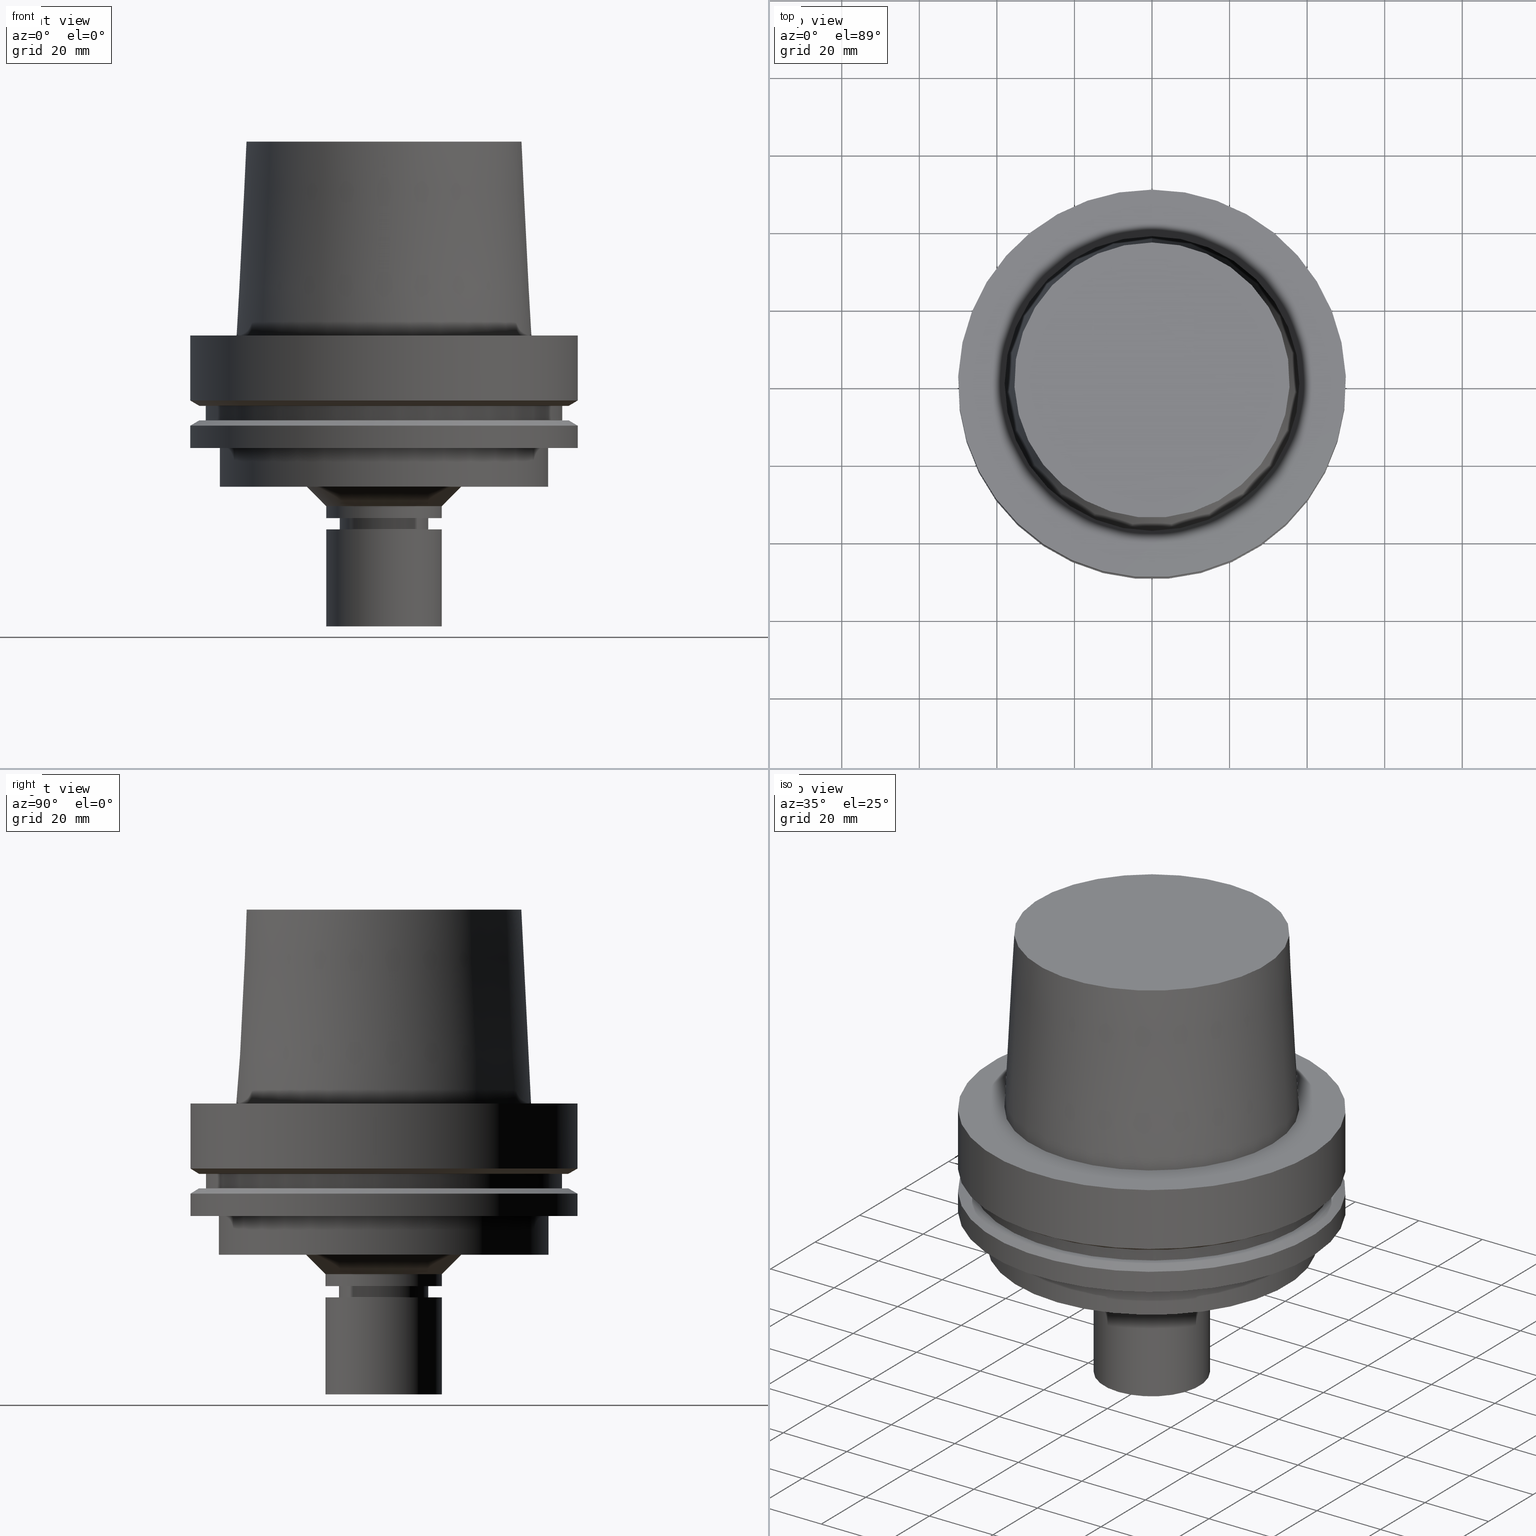
[diagram: canonical four-view strip — front | top / right | iso, engineering-drawing reading convention]
A machine part, canonical four-view strip (front | top / right | iso — engineering-drawing reading convention). The complete STEP part file that produces these views, byte-faithful:
ISO-10303-21;
HEADER;
FILE_DESCRIPTION((''),'1');
FILE_NAME('U:/Translate/02_3D_Field-HP\X2\FF71FF6FFF8CFF9F5916\X0\2013/02_Step_Field-HP\X2\FF71FF6FFF8CFF9F5916\X0\2013/HSK-A100-MEGAER16-75NL.stp','2016-06-22T01:01:26',(''),(''),'Spatial Interop R21 SP3','Kubotek KeyCreator 2011 V10.0.2 (22737)',' ');
FILE_SCHEMA(('automotive_design'));
ENDSEC;
DATA;
#1=MECHANICAL_DESIGN_GEOMETRIC_PRESENTATION_REPRESENTATION(' ',(#14,#15,#16,#17,#18,#19,#20,#21,#22,#23,#24,#25,#26,#27,#28,#29,#30,#31,#32,#33,#34,#35,#36,#37,#38,#39,#40,#41,#42,#43,#44,#45,#46,#47,#48,#49,#50,#51,#52,#53,#54,#55,#56,#57,#58,#59,#60,#61),#10);
#2=PRODUCT_DEFINITION_CONTEXT('',#62,'design');
#3=APPLICATION_PROTOCOL_DEFINITION('INTERNATIONAL STANDARD','automotive_design',1994,#62);
#4=PRODUCT_CATEGORY_RELATIONSHIP('NONE','NONE',#63,#64);
#5=SHAPE_DEFINITION_REPRESENTATION(#65,#66);
#6=PRODUCT_DEFINITION_CONTEXT('',#67,'design');
#7=APPLICATION_PROTOCOL_DEFINITION('INTERNATIONAL STANDARD','automotive_design',1994,#67);
#8=PRODUCT_CATEGORY_RELATIONSHIP('NONE','NONE',#68,#69);
#9=SHAPE_DEFINITION_REPRESENTATION(#70,#71);
#10= (GEOMETRIC_REPRESENTATION_CONTEXT(3)GLOBAL_UNCERTAINTY_ASSIGNED_CONTEXT((#74))GLOBAL_UNIT_ASSIGNED_CONTEXT((#76,#77,#78))REPRESENTATION_CONTEXT('NONE','WORKSPACE'));
#14=STYLED_ITEM('',(#80,#81),#82);
#15=STYLED_ITEM('',(#83,#84),#85);
#16=STYLED_ITEM('',(#86,#87),#88);
#17=STYLED_ITEM('',(#89,#90),#91);
#18=STYLED_ITEM('',(#92),#93);
#19=STYLED_ITEM('',(#94),#95);
#20=STYLED_ITEM('',(#96,#97),#98);
#21=STYLED_ITEM('',(#99,#100),#101);
#22=STYLED_ITEM('',(#102,#103),#104);
#23=STYLED_ITEM('',(#105),#106);
#24=STYLED_ITEM('',(#107),#108);
#25=STYLED_ITEM('',(#109,#110),#111);
#26=STYLED_ITEM('',(#112),#113);
#27=STYLED_ITEM('',(#114),#115);
#28=STYLED_ITEM('',(#116),#117);
#29=STYLED_ITEM('',(#118),#119);
#30=STYLED_ITEM('',(#120),#121);
#31=STYLED_ITEM('',(#122,#123),#124);
#32=STYLED_ITEM('',(#125,#126),#127);
#33=STYLED_ITEM('',(#128,#129),#130);
#34=STYLED_ITEM('',(#131,#132),#133);
#35=STYLED_ITEM('',(#134,#135),#136);
#36=STYLED_ITEM('',(#137,#138),#139);
#37=STYLED_ITEM('',(#140,#141),#142);
#38=STYLED_ITEM('',(#143),#144);
#39=STYLED_ITEM('',(#145,#146),#147);
#40=STYLED_ITEM('',(#148),#149);
#41=STYLED_ITEM('',(#150),#151);
#42=STYLED_ITEM('',(#152,#153),#154);
#43=STYLED_ITEM('',(#155),#156);
#44=STYLED_ITEM('',(#157),#158);
#45=STYLED_ITEM('',(#159),#160);
#46=STYLED_ITEM('',(#161,#162),#163);
#47=STYLED_ITEM('',(#164),#165);
#48=STYLED_ITEM('',(#166),#167);
#49=STYLED_ITEM('',(#168),#169);
#50=STYLED_ITEM('',(#170),#171);
#51=STYLED_ITEM('',(#172,#173),#174);
#52=STYLED_ITEM('',(#175,#176),#177);
#53=STYLED_ITEM('',(#178,#179),#180);
#54=STYLED_ITEM('',(#181,#182),#183);
#55=STYLED_ITEM('',(#184,#185),#186);
#56=STYLED_ITEM('',(#187,#188),#189);
#57=STYLED_ITEM('',(#190,#191),#192);
#58=STYLED_ITEM('',(#193),#194);
#59=STYLED_ITEM('',(#195,#196),#197);
#60=STYLED_ITEM('',(#198),#199);
#61=STYLED_ITEM('',(#200),#201);
#62=APPLICATION_CONTEXT(' ');
#63=PRODUCT_CATEGORY('part','NONE');
#64=PRODUCT_RELATED_PRODUCT_CATEGORY('detail',' ',(#202));
#65=PRODUCT_DEFINITION_SHAPE('NONE','NONE',#203);
#66=ADVANCED_BREP_SHAPE_REPRESENTATION('Unnamed[1]',(#130,#204),#10);
#67=APPLICATION_CONTEXT(' ');
#68=PRODUCT_CATEGORY('part','NONE');
#69=PRODUCT_RELATED_PRODUCT_CATEGORY('detail',' ',(#205));
#70=PRODUCT_DEFINITION_SHAPE('NONE','NONE',#206);
#71=ADVANCED_BREP_SHAPE_REPRESENTATION('Unnamed[1]',(#98,#207),#10);
#74=UNCERTAINTY_MEASURE_WITH_UNIT(LENGTH_MEASURE(1.0E-006),#76,'','');
#76= (CONVERSION_BASED_UNIT('MILLIMETRE',#210)LENGTH_UNIT()NAMED_UNIT(#213));
#77= (NAMED_UNIT(#215)PLANE_ANGLE_UNIT()SI_UNIT($,.RADIAN.));
#78= (NAMED_UNIT(#215)SOLID_ANGLE_UNIT()SI_UNIT($,.STERADIAN.));
#80=PRESENTATION_STYLE_ASSIGNMENT((#221));
#81=PRESENTATION_STYLE_ASSIGNMENT((#222));
#82=ADVANCED_FACE('Unnamed[1]',(#223,#224),#225,.T.);
#83=PRESENTATION_STYLE_ASSIGNMENT((#226));
#84=PRESENTATION_STYLE_ASSIGNMENT((#227));
#85=ADVANCED_FACE('Unnamed[1]',(#228,#229),#230,.T.);
#86=PRESENTATION_STYLE_ASSIGNMENT((#231));
#87=PRESENTATION_STYLE_ASSIGNMENT((#232));
#88=ADVANCED_FACE('Unnamed[1]',(#233,#234),#235,.T.);
#89=PRESENTATION_STYLE_ASSIGNMENT((#236));
#90=PRESENTATION_STYLE_ASSIGNMENT((#237));
#91=ADVANCED_FACE('Unnamed[1]',(#238,#239),#240,.T.);
#92=PRESENTATION_STYLE_ASSIGNMENT((#241));
#93=EDGE_CURVE('Unnamed[1]',#242,#242,#243,.T.);
#94=PRESENTATION_STYLE_ASSIGNMENT((#244));
#95=EDGE_CURVE('Unnamed[1]',#245,#245,#246,.T.);
#96=PRESENTATION_STYLE_ASSIGNMENT((#247));
#97=PRESENTATION_STYLE_ASSIGNMENT((#248));
#98=MANIFOLD_SOLID_BREP('Unnamed[1]',#249);
#99=PRESENTATION_STYLE_ASSIGNMENT((#250));
#100=PRESENTATION_STYLE_ASSIGNMENT((#251));
#101=ADVANCED_FACE('Unnamed[1]',(#252,#253),#254,.T.);
#102=PRESENTATION_STYLE_ASSIGNMENT((#255));
#103=PRESENTATION_STYLE_ASSIGNMENT((#256));
#104=ADVANCED_FACE('Unnamed[1]',(#257,#258),#259,.T.);
#105=PRESENTATION_STYLE_ASSIGNMENT((#260));
#106=EDGE_CURVE('Unnamed[1]',#261,#261,#262,.T.);
#107=PRESENTATION_STYLE_ASSIGNMENT((#263));
#108=EDGE_CURVE('Unnamed[1]',#264,#264,#265,.T.);
#109=PRESENTATION_STYLE_ASSIGNMENT((#266));
#110=PRESENTATION_STYLE_ASSIGNMENT((#267));
#111=ADVANCED_FACE('Unnamed[1]',(#268,#269),#270,.T.);
#112=PRESENTATION_STYLE_ASSIGNMENT((#271));
#113=EDGE_CURVE('Unnamed[1]',#272,#272,#273,.T.);
#114=PRESENTATION_STYLE_ASSIGNMENT((#274));
#115=EDGE_CURVE('Unnamed[1]',#275,#275,#276,.T.);
#116=PRESENTATION_STYLE_ASSIGNMENT((#277));
#117=EDGE_CURVE('Unnamed[1]',#278,#278,#279,.T.);
#118=PRESENTATION_STYLE_ASSIGNMENT((#280));
#119=EDGE_CURVE('Unnamed[1]',#281,#281,#282,.T.);
#120=PRESENTATION_STYLE_ASSIGNMENT((#283));
#121=EDGE_CURVE('Unnamed[1]',#284,#284,#285,.T.);
#122=PRESENTATION_STYLE_ASSIGNMENT((#286));
#123=PRESENTATION_STYLE_ASSIGNMENT((#287));
#124=ADVANCED_FACE('Unnamed[1]',(#288,#289),#290,.T.);
#125=PRESENTATION_STYLE_ASSIGNMENT((#291));
#126=PRESENTATION_STYLE_ASSIGNMENT((#292));
#127=ADVANCED_FACE('Unnamed[1]',(#293,#294),#295,.T.);
#128=PRESENTATION_STYLE_ASSIGNMENT((#296));
#129=PRESENTATION_STYLE_ASSIGNMENT((#297));
#130=MANIFOLD_SOLID_BREP('Unnamed[1]',#298);
#131=PRESENTATION_STYLE_ASSIGNMENT((#299));
#132=PRESENTATION_STYLE_ASSIGNMENT((#300));
#133=ADVANCED_FACE('Unnamed[1]',(#301,#302),#303,.T.);
#134=PRESENTATION_STYLE_ASSIGNMENT((#304));
#135=PRESENTATION_STYLE_ASSIGNMENT((#305));
#136=ADVANCED_FACE('Unnamed[1]',(#306,#307),#308,.T.);
#137=PRESENTATION_STYLE_ASSIGNMENT((#309));
#138=PRESENTATION_STYLE_ASSIGNMENT((#310));
#139=ADVANCED_FACE('Unnamed[1]',(#311,#312),#313,.T.);
#140=PRESENTATION_STYLE_ASSIGNMENT((#314));
#141=PRESENTATION_STYLE_ASSIGNMENT((#315));
#142=ADVANCED_FACE('Unnamed[1]',(#316,#317),#318,.T.);
#143=PRESENTATION_STYLE_ASSIGNMENT((#319));
#144=EDGE_CURVE('Unnamed[1]',#320,#320,#321,.T.);
#145=PRESENTATION_STYLE_ASSIGNMENT((#322));
#146=PRESENTATION_STYLE_ASSIGNMENT((#323));
#147=ADVANCED_FACE('Unnamed[1]',(#324),#325,.T.);
#148=PRESENTATION_STYLE_ASSIGNMENT((#326));
#149=EDGE_CURVE('Unnamed[1]',#327,#327,#328,.T.);
#150=PRESENTATION_STYLE_ASSIGNMENT((#329));
#151=EDGE_CURVE('Unnamed[1]',#330,#330,#331,.T.);
#152=PRESENTATION_STYLE_ASSIGNMENT((#332));
#153=PRESENTATION_STYLE_ASSIGNMENT((#333));
#154=ADVANCED_FACE('Unnamed[1]',(#334),#335,.T.);
#155=PRESENTATION_STYLE_ASSIGNMENT((#336));
#156=EDGE_CURVE('Unnamed[1]',#337,#337,#338,.T.);
#157=PRESENTATION_STYLE_ASSIGNMENT((#339));
#158=EDGE_CURVE('Unnamed[1]',#340,#340,#341,.T.);
#159=PRESENTATION_STYLE_ASSIGNMENT((#342));
#160=EDGE_CURVE('Unnamed[1]',#343,#343,#344,.T.);
#161=PRESENTATION_STYLE_ASSIGNMENT((#345));
#162=PRESENTATION_STYLE_ASSIGNMENT((#346));
#163=ADVANCED_FACE('Unnamed[1]',(#347,#348),#349,.T.);
#164=PRESENTATION_STYLE_ASSIGNMENT((#350));
#165=EDGE_CURVE('Unnamed[1]',#351,#351,#352,.T.);
#166=PRESENTATION_STYLE_ASSIGNMENT((#353));
#167=EDGE_CURVE('Unnamed[1]',#354,#354,#355,.T.);
#168=PRESENTATION_STYLE_ASSIGNMENT((#356));
#169=EDGE_CURVE('Unnamed[1]',#357,#357,#358,.T.);
#170=PRESENTATION_STYLE_ASSIGNMENT((#359));
#171=EDGE_CURVE('Unnamed[1]',#360,#360,#361,.T.);
#172=PRESENTATION_STYLE_ASSIGNMENT((#362));
#173=PRESENTATION_STYLE_ASSIGNMENT((#363));
#174=ADVANCED_FACE('Unnamed[1]',(#364),#365,.T.);
#175=PRESENTATION_STYLE_ASSIGNMENT((#366));
#176=PRESENTATION_STYLE_ASSIGNMENT((#367));
#177=ADVANCED_FACE('Unnamed[1]',(#368,#369),#370,.T.);
#178=PRESENTATION_STYLE_ASSIGNMENT((#371));
#179=PRESENTATION_STYLE_ASSIGNMENT((#372));
#180=ADVANCED_FACE('Unnamed[1]',(#373),#374,.T.);
#181=PRESENTATION_STYLE_ASSIGNMENT((#375));
#182=PRESENTATION_STYLE_ASSIGNMENT((#376));
#183=ADVANCED_FACE('Unnamed[1]',(#377,#378),#379,.T.);
#184=PRESENTATION_STYLE_ASSIGNMENT((#380));
#185=PRESENTATION_STYLE_ASSIGNMENT((#381));
#186=ADVANCED_FACE('Unnamed[1]',(#382,#383),#384,.T.);
#187=PRESENTATION_STYLE_ASSIGNMENT((#385));
#188=PRESENTATION_STYLE_ASSIGNMENT((#386));
#189=ADVANCED_FACE('Unnamed[1]',(#387,#388),#389,.T.);
#190=PRESENTATION_STYLE_ASSIGNMENT((#390));
#191=PRESENTATION_STYLE_ASSIGNMENT((#391));
#192=ADVANCED_FACE('Unnamed[1]',(#392,#393),#394,.T.);
#193=PRESENTATION_STYLE_ASSIGNMENT((#395));
#194=EDGE_CURVE('Unnamed[1]',#396,#396,#397,.T.);
#195=PRESENTATION_STYLE_ASSIGNMENT((#398));
#196=PRESENTATION_STYLE_ASSIGNMENT((#399));
#197=ADVANCED_FACE('Unnamed[1]',(#400,#401),#402,.T.);
#198=PRESENTATION_STYLE_ASSIGNMENT((#403));
#199=EDGE_CURVE('Unnamed[1]',#404,#404,#405,.T.);
#200=PRESENTATION_STYLE_ASSIGNMENT((#406));
#201=EDGE_CURVE('Unnamed[1]',#407,#407,#408,.T.);
#202=PRODUCT('Unnamed[1]','Unnamed[1]','PART-Unnamed[1]-DESC',(#409));
#203=PRODUCT_DEFINITION('NONE','NONE',#410,#2);
#204=AXIS2_PLACEMENT_3D('',#411,#412,#413);
#205=PRODUCT('Unnamed[1]','Unnamed[1]','PART-Unnamed[1]-DESC',(#414));
#206=PRODUCT_DEFINITION('NONE','NONE',#415,#6);
#207=AXIS2_PLACEMENT_3D('',#416,#417,#418);
#210=LENGTH_MEASURE_WITH_UNIT(LENGTH_MEASURE(1.0),#419);
#213=DIMENSIONAL_EXPONENTS(1.0,0.0,0.0,0.0,0.0,0.0,0.0);
#215=DIMENSIONAL_EXPONENTS(0.0,0.0,0.0,0.0,0.0,0.0,0.0);
#221=SURFACE_STYLE_USAGE(.BOTH.,#420);
#222=CURVE_STYLE('',#421,POSITIVE_LENGTH_MEASURE(1000.0),#422);
#223=FACE_BOUND('',#423,.T.);
#224=FACE_BOUND('',#424,.T.);
#225=CONICAL_SURFACE('',#425,48.81129763,1.04719755328238);
#226=SURFACE_STYLE_USAGE(.BOTH.,#426);
#227=CURVE_STYLE('',#427,POSITIVE_LENGTH_MEASURE(1000.0),#428);
#228=FACE_BOUND('',#429,.T.);
#229=FACE_BOUND('',#430,.T.);
#230=CONICAL_SURFACE('',#431,17.5,0.785398163397448);
#231=SURFACE_STYLE_USAGE(.BOTH.,#432);
#232=CURVE_STYLE('',#433,POSITIVE_LENGTH_MEASURE(1000.0),#434);
#233=FACE_BOUND('',#435,.T.);
#234=FACE_BOUND('',#436,.T.);
#235=CYLINDRICAL_SURFACE('',#437,15.0);
#236=SURFACE_STYLE_USAGE(.BOTH.,#438);
#237=CURVE_STYLE('',#439,POSITIVE_LENGTH_MEASURE(1000.0),#440);
#238=FACE_BOUND('',#441,.T.);
#239=FACE_OUTER_BOUND('',#442,.T.);
#240=PLANE('',#443);
#241=CURVE_STYLE('',#444,POSITIVE_LENGTH_MEASURE(1000.0),#445);
#242=VERTEX_POINT('',#446);
#243=CIRCLE('',#447,42.5);
#244=CURVE_STYLE('',#448,POSITIVE_LENGTH_MEASURE(1000.0),#449);
#245=VERTEX_POINT('',#450);
#246=CIRCLE('',#451,15.0);
#247=SURFACE_STYLE_USAGE(.BOTH.,#452);
#248=CURVE_STYLE('',#453,POSITIVE_LENGTH_MEASURE(1000.0),#454);
#249=CLOSED_SHELL('',(#174,#180,#88));
#250=SURFACE_STYLE_USAGE(.BOTH.,#455);
#251=CURVE_STYLE('',#456,POSITIVE_LENGTH_MEASURE(1000.0),#457);
#252=FACE_BOUND('',#458,.T.);
#253=FACE_BOUND('',#459,.T.);
#254=CYLINDRICAL_SURFACE('',#460,11.4999999999964);
#255=SURFACE_STYLE_USAGE(.BOTH.,#461);
#256=CURVE_STYLE('',#462,POSITIVE_LENGTH_MEASURE(1000.0),#463);
#257=FACE_BOUND('',#464,.T.);
#258=FACE_BOUND('',#465,.T.);
#259=CYLINDRICAL_SURFACE('',#466,11.0000000000001);
#260=CURVE_STYLE('',#467,POSITIVE_LENGTH_MEASURE(1000.0),#468);
#261=VERTEX_POINT('',#469);
#262=CIRCLE('',#470,37.9999999999349);
#263=CURVE_STYLE('',#471,POSITIVE_LENGTH_MEASURE(1000.0),#472);
#264=VERTEX_POINT('',#473);
#265=CIRCLE('',#474,46.0);
#266=SURFACE_STYLE_USAGE(.BOTH.,#475);
#267=CURVE_STYLE('',#476,POSITIVE_LENGTH_MEASURE(1000.0),#477);
#268=FACE_BOUND('',#478,.T.);
#269=FACE_OUTER_BOUND('',#479,.T.);
#270=PLANE('',#480);
#271=CURVE_STYLE('',#481,POSITIVE_LENGTH_MEASURE(1000.0),#482);
#272=VERTEX_POINT('',#483);
#273=CIRCLE('',#484,35.5000000015618);
#274=CURVE_STYLE('',#485,POSITIVE_LENGTH_MEASURE(1000.0),#486);
#275=VERTEX_POINT('',#487);
#276=CIRCLE('',#488,15.0);
#277=CURVE_STYLE('',#489,POSITIVE_LENGTH_MEASURE(1000.0),#490);
#278=VERTEX_POINT('',#491);
#279=CIRCLE('',#492,47.62259526);
#280=CURVE_STYLE('',#493,POSITIVE_LENGTH_MEASURE(1000.0),#494);
#281=VERTEX_POINT('',#495);
#282=CIRCLE('',#496,50.0);
#283=CURVE_STYLE('',#497,POSITIVE_LENGTH_MEASURE(1000.0),#498);
#284=VERTEX_POINT('',#499);
#285=CIRCLE('',#500,42.5);
#286=SURFACE_STYLE_USAGE(.BOTH.,#501);
#287=CURVE_STYLE('',#502,POSITIVE_LENGTH_MEASURE(1000.0),#503);
#288=FACE_BOUND('',#504,.T.);
#289=FACE_BOUND('',#505,.T.);
#290=CONICAL_SURFACE('',#506,36.7500000007484,0.0499583956894843);
#291=SURFACE_STYLE_USAGE(.BOTH.,#507);
#292=CURVE_STYLE('',#508,POSITIVE_LENGTH_MEASURE(1000.0),#509);
#293=FACE_BOUND('',#510,.T.);
#294=FACE_BOUND('',#511,.T.);
#295=CYLINDRICAL_SURFACE('',#512,15.0);
#296=SURFACE_STYLE_USAGE(.BOTH.,#513);
#297=CURVE_STYLE('',#514,POSITIVE_LENGTH_MEASURE(1000.0),#515);
#298=CLOSED_SHELL('',(#154,#124,#163,#189,#82,#91,#183,#136,#197,#192,#111,#139,#186,#85,#127,#142,#101,#177,#104,#133,#147));
#299=SURFACE_STYLE_USAGE(.BOTH.,#516);
#300=CURVE_STYLE('',#517,POSITIVE_LENGTH_MEASURE(1000.0),#518);
#301=FACE_BOUND('',#519,.T.);
#302=FACE_BOUND('',#520,.T.);
#303=CONICAL_SURFACE('',#521,10.4499999999999,0.523598775598215);
#304=SURFACE_STYLE_USAGE(.BOTH.,#522);
#305=CURVE_STYLE('',#523,POSITIVE_LENGTH_MEASURE(1000.0),#524);
#306=FACE_OUTER_BOUND('',#525,.T.);
#307=FACE_BOUND('',#526,.T.);
#308=PLANE('',#527);
#309=SURFACE_STYLE_USAGE(.BOTH.,#528);
#310=CURVE_STYLE('',#529,POSITIVE_LENGTH_MEASURE(1000.0),#530);
#311=FACE_BOUND('',#531,.T.);
#312=FACE_BOUND('',#532,.T.);
#313=CYLINDRICAL_SURFACE('',#533,42.5);
#314=SURFACE_STYLE_USAGE(.BOTH.,#534);
#315=CURVE_STYLE('',#535,POSITIVE_LENGTH_MEASURE(1000.0),#536);
#316=FACE_BOUND('',#537,.T.);
#317=FACE_OUTER_BOUND('',#538,.T.);
#318=PLANE('',#539);
#319=CURVE_STYLE('',#540,POSITIVE_LENGTH_MEASURE(1000.0),#541);
#320=VERTEX_POINT('',#542);
#321=CIRCLE('',#543,47.62259526);
#322=SURFACE_STYLE_USAGE(.BOTH.,#544);
#323=CURVE_STYLE('',#545,POSITIVE_LENGTH_MEASURE(1000.0),#546);
#324=FACE_OUTER_BOUND('',#547,.T.);
#325=PLANE('',#548);
#326=CURVE_STYLE('',#549,POSITIVE_LENGTH_MEASURE(1000.0),#550);
#327=VERTEX_POINT('',#551);
#328=CIRCLE('',#552,11.0000000000003);
#329=CURVE_STYLE('',#553,POSITIVE_LENGTH_MEASURE(1000.0),#554);
#330=VERTEX_POINT('',#555);
#331=CIRCLE('',#556,50.0);
#332=SURFACE_STYLE_USAGE(.BOTH.,#557);
#333=CURVE_STYLE('',#558,POSITIVE_LENGTH_MEASURE(1000.0),#559);
#334=FACE_OUTER_BOUND('',#560,.T.);
#335=PLANE('',#561);
#336=CURVE_STYLE('',#562,POSITIVE_LENGTH_MEASURE(1000.0),#563);
#337=VERTEX_POINT('',#564);
#338=CIRCLE('',#565,15.0000000000001);
#339=CURVE_STYLE('',#566,POSITIVE_LENGTH_MEASURE(1000.0),#567);
#340=VERTEX_POINT('',#568);
#341=CIRCLE('',#569,11.4999999999907);
#342=CURVE_STYLE('',#570,POSITIVE_LENGTH_MEASURE(1000.0),#571);
#343=VERTEX_POINT('',#572);
#344=CIRCLE('',#573,46.0);
#345=SURFACE_STYLE_USAGE(.BOTH.,#574);
#346=CURVE_STYLE('',#575,POSITIVE_LENGTH_MEASURE(1000.0),#576);
#347=FACE_OUTER_BOUND('',#577,.T.);
#348=FACE_BOUND('',#578,.T.);
#349=PLANE('',#579);
#350=CURVE_STYLE('',#580,POSITIVE_LENGTH_MEASURE(1000.0),#581);
#351=VERTEX_POINT('',#582);
#352=CIRCLE('',#583,50.0);
#353=CURVE_STYLE('',#584,POSITIVE_LENGTH_MEASURE(1000.0),#585);
#354=VERTEX_POINT('',#586);
#355=CIRCLE('',#587,15.0);
#356=CURVE_STYLE('',#588,POSITIVE_LENGTH_MEASURE(1000.0),#589);
#357=VERTEX_POINT('',#590);
#358=CIRCLE('',#591,20.0);
#359=CURVE_STYLE('',#592,POSITIVE_LENGTH_MEASURE(1000.0),#593);
#360=VERTEX_POINT('',#594);
#361=CIRCLE('',#595,9.89999999999962);
#362=SURFACE_STYLE_USAGE(.BOTH.,#596);
#363=CURVE_STYLE('',#597,POSITIVE_LENGTH_MEASURE(1000.0),#598);
#364=FACE_OUTER_BOUND('',#599,.T.);
#365=PLANE('',#600);
#366=SURFACE_STYLE_USAGE(.BOTH.,#601);
#367=CURVE_STYLE('',#602,POSITIVE_LENGTH_MEASURE(1000.0),#603);
#368=FACE_BOUND('',#604,.T.);
#369=FACE_BOUND('',#605,.T.);
#370=CONICAL_SURFACE('',#606,11.250000000001,0.766162649701768);
#371=SURFACE_STYLE_USAGE(.BOTH.,#607);
#372=CURVE_STYLE('',#608,POSITIVE_LENGTH_MEASURE(1000.0),#609);
#373=FACE_OUTER_BOUND('',#610,.T.);
#374=PLANE('',#611);
#375=SURFACE_STYLE_USAGE(.BOTH.,#612);
#376=CURVE_STYLE('',#613,POSITIVE_LENGTH_MEASURE(1000.0),#614);
#377=FACE_BOUND('',#615,.T.);
#378=FACE_BOUND('',#616,.T.);
#379=CYLINDRICAL_SURFACE('',#617,46.0);
#380=SURFACE_STYLE_USAGE(.BOTH.,#618);
#381=CURVE_STYLE('',#619,POSITIVE_LENGTH_MEASURE(1000.0),#620);
#382=FACE_BOUND('',#621,.T.);
#383=FACE_OUTER_BOUND('',#622,.T.);
#384=PLANE('',#623);
#385=SURFACE_STYLE_USAGE(.BOTH.,#624);
#386=CURVE_STYLE('',#625,POSITIVE_LENGTH_MEASURE(1000.0),#626);
#387=FACE_BOUND('',#627,.T.);
#388=FACE_BOUND('',#628,.T.);
#389=CYLINDRICAL_SURFACE('',#629,50.0);
#390=SURFACE_STYLE_USAGE(.BOTH.,#630);
#391=CURVE_STYLE('',#631,POSITIVE_LENGTH_MEASURE(1000.0),#632);
#392=FACE_BOUND('',#633,.T.);
#393=FACE_BOUND('',#634,.T.);
#394=CYLINDRICAL_SURFACE('',#635,50.0);
#395=CURVE_STYLE('',#636,POSITIVE_LENGTH_MEASURE(1000.0),#637);
#396=VERTEX_POINT('',#638);
#397=CIRCLE('',#639,50.0);
#398=SURFACE_STYLE_USAGE(.BOTH.,#640);
#399=CURVE_STYLE('',#641,POSITIVE_LENGTH_MEASURE(1000.0),#642);
#400=FACE_BOUND('',#643,.T.);
#401=FACE_BOUND('',#644,.T.);
#402=CONICAL_SURFACE('',#645,48.81129763,1.04719755328238);
#403=CURVE_STYLE('',#646,POSITIVE_LENGTH_MEASURE(1000.0),#647);
#404=VERTEX_POINT('',#648);
#405=CIRCLE('',#649,11.5000000000021);
#406=CURVE_STYLE('',#650,POSITIVE_LENGTH_MEASURE(1000.0),#651);
#407=VERTEX_POINT('',#652);
#408=CIRCLE('',#653,10.9999999999999);
#409=PRODUCT_CONTEXT('',#62,'mechanical');
#410=PRODUCT_DEFINITION_FORMATION_WITH_SPECIFIED_SOURCE(' ','NONE',#202,.NOT_KNOWN.);
#411=CARTESIAN_POINT('',(0.0,0.0,0.0));
#412=DIRECTION('',(0.0,0.0,1.0));
#413=DIRECTION('',(1.0,0.0,0.0));
#414=PRODUCT_CONTEXT('',#67,'mechanical');
#415=PRODUCT_DEFINITION_FORMATION_WITH_SPECIFIED_SOURCE(' ','NONE',#205,.NOT_KNOWN.);
#416=CARTESIAN_POINT('',(0.0,0.0,0.0));
#417=DIRECTION('',(0.0,0.0,1.0));
#418=DIRECTION('',(1.0,0.0,0.0));
#419= (NAMED_UNIT(#213)LENGTH_UNIT()SI_UNIT(.MILLI.,.METRE.));
#420=SURFACE_SIDE_STYLE('',(#655));
#421=DRAUGHTING_PRE_DEFINED_CURVE_FONT('continuous');
#422=COLOUR_RGB('',0.0,1.0,0.0);
#423=EDGE_LOOP('',(#656));
#424=EDGE_LOOP('',(#657));
#425=AXIS2_PLACEMENT_3D('',#658,#659,#660);
#426=SURFACE_SIDE_STYLE('',(#661));
#427=DRAUGHTING_PRE_DEFINED_CURVE_FONT('continuous');
#428=COLOUR_RGB('',0.0,1.0,0.0);
#429=EDGE_LOOP('',(#662));
#430=EDGE_LOOP('',(#663));
#431=AXIS2_PLACEMENT_3D('',#664,#665,#666);
#432=SURFACE_SIDE_STYLE('',(#667));
#433=DRAUGHTING_PRE_DEFINED_CURVE_FONT('continuous');
#434=COLOUR_RGB('',0.0,1.0,0.0);
#435=EDGE_LOOP('',(#668));
#436=EDGE_LOOP('',(#669));
#437=AXIS2_PLACEMENT_3D('',#670,#671,#672);
#438=SURFACE_SIDE_STYLE('',(#673));
#439=DRAUGHTING_PRE_DEFINED_CURVE_FONT('continuous');
#440=COLOUR_RGB('',0.0,1.0,0.0);
#441=EDGE_LOOP('',(#674));
#442=EDGE_LOOP('',(#675));
#443=AXIS2_PLACEMENT_3D('',#676,#677,#678);
#444=DRAUGHTING_PRE_DEFINED_CURVE_FONT('continuous');
#445=COLOUR_RGB('',0.0,1.0,0.0);
#446=CARTESIAN_POINT('',(2.38806125833734E-015,42.5,-39.0));
#447=AXIS2_PLACEMENT_3D('',#679,#680,#681);
#448=DRAUGHTING_PRE_DEFINED_CURVE_FONT('continuous');
#449=COLOUR_RGB('',0.0,1.0,0.0);
#450=CARTESIAN_POINT('',(2.69422295812418E-015,15.0,-44.0));
#451=AXIS2_PLACEMENT_3D('',#682,#683,#684);
#452=SURFACE_SIDE_STYLE('',(#685));
#453=DRAUGHTING_PRE_DEFINED_CURVE_FONT('continuous');
#454=COLOUR_RGB('',0.0,1.0,0.0);
#455=SURFACE_SIDE_STYLE('',(#686));
#456=DRAUGHTING_PRE_DEFINED_CURVE_FONT('continuous');
#457=COLOUR_RGB('',0.0,1.0,0.0);
#458=EDGE_LOOP('',(#687));
#459=EDGE_LOOP('',(#688));
#460=AXIS2_PLACEMENT_3D('',#689,#690,#691);
#461=SURFACE_SIDE_STYLE('',(#692));
#462=DRAUGHTING_PRE_DEFINED_CURVE_FONT('continuous');
#463=COLOUR_RGB('',0.0,1.0,0.0);
#464=EDGE_LOOP('',(#693));
#465=EDGE_LOOP('',(#694));
#466=AXIS2_PLACEMENT_3D('',#695,#696,#697);
#467=DRAUGHTING_PRE_DEFINED_CURVE_FONT('continuous');
#468=COLOUR_RGB('',0.0,1.0,0.0);
#469=CARTESIAN_POINT('',(-3.3636548776863E-032,37.9999999999349,-2.44634216324803E-015));
#470=AXIS2_PLACEMENT_3D('',#698,#699,#700);
#471=DRAUGHTING_PRE_DEFINED_CURVE_FONT('continuous');
#472=COLOUR_RGB('',0.0,1.0,0.0);
#473=CARTESIAN_POINT('',(1.33945743656742E-015,46.0,-21.875));
#474=AXIS2_PLACEMENT_3D('',#701,#702,#703);
#475=SURFACE_SIDE_STYLE('',(#704));
#476=DRAUGHTING_PRE_DEFINED_CURVE_FONT('continuous');
#477=COLOUR_RGB('',0.0,1.0,0.0);
#478=EDGE_LOOP('',(#705));
#479=EDGE_LOOP('',(#706));
#480=AXIS2_PLACEMENT_3D('',#707,#708,#709);
#481=DRAUGHTING_PRE_DEFINED_CURVE_FONT('continuous');
#482=COLOUR_RGB('',0.0,1.0,0.0);
#483=CARTESIAN_POINT('',(-3.06161699786838E-015,35.5000000015618,50.0));
#484=AXIS2_PLACEMENT_3D('',#710,#711,#712);
#485=DRAUGHTING_PRE_DEFINED_CURVE_FONT('continuous');
#486=COLOUR_RGB('',0.0,1.0,0.0);
#487=CARTESIAN_POINT('',(2.88404321199198E-015,15.0,-47.0999999999993));
#488=AXIS2_PLACEMENT_3D('',#713,#714,#715);
#489=DRAUGHTING_PRE_DEFINED_CURVE_FONT('continuous');
#490=COLOUR_RGB('',0.0,1.0,0.0);
#491=CARTESIAN_POINT('',(1.10983616172729E-015,47.62259526,-18.125));
#492=AXIS2_PLACEMENT_3D('',#716,#717,#718);
#493=DRAUGHTING_PRE_DEFINED_CURVE_FONT('continuous');
#494=COLOUR_RGB('',0.0,1.0,0.0);
#495=CARTESIAN_POINT('',(1.0257889421431E-015,50.0,-16.75240474));
#496=AXIS2_PLACEMENT_3D('',#719,#720,#721);
#497=DRAUGHTING_PRE_DEFINED_CURVE_FONT('continuous');
#498=COLOUR_RGB('',0.0,1.0,0.0);
#499=CARTESIAN_POINT('',(1.77573785876366E-015,42.5,-29.0));
#500=AXIS2_PLACEMENT_3D('',#722,#723,#724);
#501=SURFACE_SIDE_STYLE('',(#725));
#502=DRAUGHTING_PRE_DEFINED_CURVE_FONT('continuous');
#503=COLOUR_RGB('',0.0,1.0,0.0);
#504=EDGE_LOOP('',(#726));
#505=EDGE_LOOP('',(#727));
#506=AXIS2_PLACEMENT_3D('',#728,#729,#730);
#507=SURFACE_SIDE_STYLE('',(#731));
#508=DRAUGHTING_PRE_DEFINED_CURVE_FONT('continuous');
#509=COLOUR_RGB('',0.0,1.0,0.0);
#510=EDGE_LOOP('',(#732));
#511=EDGE_LOOP('',(#733));
#512=AXIS2_PLACEMENT_3D('',#734,#735,#736);
#513=SURFACE_SIDE_STYLE('',(#737));
#514=DRAUGHTING_PRE_DEFINED_CURVE_FONT('continuous');
#515=COLOUR_RGB('',0.0,1.0,0.0);
#516=SURFACE_SIDE_STYLE('',(#738));
#517=DRAUGHTING_PRE_DEFINED_CURVE_FONT('continuous');
#518=COLOUR_RGB('',0.0,1.0,0.0);
#519=EDGE_LOOP('',(#739));
#520=EDGE_LOOP('',(#740));
#521=AXIS2_PLACEMENT_3D('',#741,#742,#743);
#522=SURFACE_SIDE_STYLE('',(#744));
#523=DRAUGHTING_PRE_DEFINED_CURVE_FONT('continuous');
#524=COLOUR_RGB('',0.0,1.0,0.0);
#525=EDGE_LOOP('',(#745));
#526=EDGE_LOOP('',(#746));
#527=AXIS2_PLACEMENT_3D('',#747,#748,#749);
#528=SURFACE_SIDE_STYLE('',(#750));
#529=DRAUGHTING_PRE_DEFINED_CURVE_FONT('continuous');
#530=COLOUR_RGB('',0.0,1.0,0.0);
#531=EDGE_LOOP('',(#751));
#532=EDGE_LOOP('',(#752));
#533=AXIS2_PLACEMENT_3D('',#753,#754,#755);
#534=SURFACE_SIDE_STYLE('',(#756));
#535=DRAUGHTING_PRE_DEFINED_CURVE_FONT('continuous');
#536=COLOUR_RGB('',0.0,1.0,0.0);
#537=EDGE_LOOP('',(#757));
#538=EDGE_LOOP('',(#758));
#539=AXIS2_PLACEMENT_3D('',#759,#760,#761);
#540=DRAUGHTING_PRE_DEFINED_CURVE_FONT('continuous');
#541=COLOUR_RGB('',0.0,1.0,0.0);
#542=CARTESIAN_POINT('',(1.33945743656742E-015,47.62259526,-21.875));
#543=AXIS2_PLACEMENT_3D('',#762,#763,#764);
#544=SURFACE_SIDE_STYLE('',(#765));
#545=DRAUGHTING_PRE_DEFINED_CURVE_FONT('continuous');
#546=COLOUR_RGB('',0.0,1.0,0.0);
#547=EDGE_LOOP('',(#766));
#548=AXIS2_PLACEMENT_3D('',#767,#768,#769);
#549=DRAUGHTING_PRE_DEFINED_CURVE_FONT('continuous');
#550=COLOUR_RGB('',0.0,1.0,0.0);
#551=CARTESIAN_POINT('',(3.93691762891786E-015,11.0000000000003,-64.2947441116719));
#552=AXIS2_PLACEMENT_3D('',#770,#771,#772);
#553=DRAUGHTING_PRE_DEFINED_CURVE_FONT('continuous');
#554=COLOUR_RGB('',0.0,1.0,0.0);
#555=CARTESIAN_POINT('',(-1.81547968506605E-031,50.0,-9.76766004263236E-016));
#556=AXIS2_PLACEMENT_3D('',#773,#774,#775);
#557=SURFACE_SIDE_STYLE('',(#776));
#558=DRAUGHTING_PRE_DEFINED_CURVE_FONT('continuous');
#559=COLOUR_RGB('',0.0,1.0,0.0);
#560=EDGE_LOOP('',(#777));
#561=AXIS2_PLACEMENT_3D('',#778,#779,#780);
#562=DRAUGHTING_PRE_DEFINED_CURVE_FONT('continuous');
#563=COLOUR_RGB('',0.0,1.0,0.0);
#564=CARTESIAN_POINT('',(3.06161699786838E-015,15.0000000000001,-50.0));
#565=AXIS2_PLACEMENT_3D('',#781,#782,#783);
#566=DRAUGHTING_PRE_DEFINED_CURVE_FONT('continuous');
#567=COLOUR_RGB('',0.0,1.0,0.0);
#568=CARTESIAN_POINT('',(2.88404321199202E-015,11.4999999999907,-47.1000000000001));
#569=AXIS2_PLACEMENT_3D('',#784,#785,#786);
#570=DRAUGHTING_PRE_DEFINED_CURVE_FONT('continuous');
#571=COLOUR_RGB('',0.0,1.0,0.0);
#572=CARTESIAN_POINT('',(1.10983616172729E-015,46.0,-18.125));
#573=AXIS2_PLACEMENT_3D('',#787,#788,#789);
#574=SURFACE_SIDE_STYLE('',(#790));
#575=DRAUGHTING_PRE_DEFINED_CURVE_FONT('continuous');
#576=COLOUR_RGB('',0.0,1.0,0.0);
#577=EDGE_LOOP('',(#791));
#578=EDGE_LOOP('',(#792));
#579=AXIS2_PLACEMENT_3D('',#793,#794,#795);
#580=DRAUGHTING_PRE_DEFINED_CURVE_FONT('continuous');
#581=COLOUR_RGB('',0.0,1.0,0.0);
#582=CARTESIAN_POINT('',(1.42350465615161E-015,50.0,-23.24759526));
#583=AXIS2_PLACEMENT_3D('',#796,#797,#798);
#584=DRAUGHTING_PRE_DEFINED_CURVE_FONT('continuous');
#585=COLOUR_RGB('',0.0,1.0,0.0);
#586=CARTESIAN_POINT('',(4.59242549680258E-015,15.0,-75.0000000000001));
#587=AXIS2_PLACEMENT_3D('',#799,#800,#801);
#588=DRAUGHTING_PRE_DEFINED_CURVE_FONT('continuous');
#589=COLOUR_RGB('',0.0,1.0,0.0);
#590=CARTESIAN_POINT('',(2.38806125833734E-015,20.0,-39.0));
#591=AXIS2_PLACEMENT_3D('',#802,#803,#804);
#592=DRAUGHTING_PRE_DEFINED_CURVE_FONT('continuous');
#593=COLOUR_RGB('',0.0,1.0,0.0);
#594=CARTESIAN_POINT('',(4.05358090517769E-015,9.89999999999963,-66.1999999999991));
#595=AXIS2_PLACEMENT_3D('',#805,#806,#807);
#596=SURFACE_SIDE_STYLE('',(#808));
#597=DRAUGHTING_PRE_DEFINED_CURVE_FONT('continuous');
#598=COLOUR_RGB('',0.0,1.0,0.0);
#599=EDGE_LOOP('',(#809));
#600=AXIS2_PLACEMENT_3D('',#810,#811,#812);
#601=SURFACE_SIDE_STYLE('',(#813));
#602=DRAUGHTING_PRE_DEFINED_CURVE_FONT('continuous');
#603=COLOUR_RGB('',0.0,1.0,0.0);
#604=EDGE_LOOP('',(#814));
#605=EDGE_LOOP('',(#815));
#606=AXIS2_PLACEMENT_3D('',#816,#817,#818);
#607=SURFACE_SIDE_STYLE('',(#819));
#608=DRAUGHTING_PRE_DEFINED_CURVE_FONT('continuous');
#609=COLOUR_RGB('',0.0,1.0,0.0);
#610=EDGE_LOOP('',(#820));
#611=AXIS2_PLACEMENT_3D('',#821,#822,#823);
#612=SURFACE_SIDE_STYLE('',(#824));
#613=DRAUGHTING_PRE_DEFINED_CURVE_FONT('continuous');
#614=COLOUR_RGB('',0.0,1.0,0.0);
#615=EDGE_LOOP('',(#825));
#616=EDGE_LOOP('',(#826));
#617=AXIS2_PLACEMENT_3D('',#827,#828,#829);
#618=SURFACE_SIDE_STYLE('',(#830));
#619=DRAUGHTING_PRE_DEFINED_CURVE_FONT('continuous');
#620=COLOUR_RGB('',0.0,1.0,0.0);
#621=EDGE_LOOP('',(#831));
#622=EDGE_LOOP('',(#832));
#623=AXIS2_PLACEMENT_3D('',#833,#834,#835);
#624=SURFACE_SIDE_STYLE('',(#836));
#625=DRAUGHTING_PRE_DEFINED_CURVE_FONT('continuous');
#626=COLOUR_RGB('',0.0,1.0,0.0);
#627=EDGE_LOOP('',(#837));
#628=EDGE_LOOP('',(#838));
#629=AXIS2_PLACEMENT_3D('',#839,#840,#841);
#630=SURFACE_SIDE_STYLE('',(#842));
#631=DRAUGHTING_PRE_DEFINED_CURVE_FONT('continuous');
#632=COLOUR_RGB('',0.0,1.0,0.0);
#633=EDGE_LOOP('',(#843));
#634=EDGE_LOOP('',(#844));
#635=AXIS2_PLACEMENT_3D('',#845,#846,#847);
#636=DRAUGHTING_PRE_DEFINED_CURVE_FONT('continuous');
#637=COLOUR_RGB('',0.0,1.0,0.0);
#638=CARTESIAN_POINT('',(1.77573785876366E-015,50.0,-29.0));
#639=AXIS2_PLACEMENT_3D('',#848,#849,#850);
#640=SURFACE_SIDE_STYLE('',(#851));
#641=DRAUGHTING_PRE_DEFINED_CURVE_FONT('continuous');
#642=COLOUR_RGB('',0.0,1.0,0.0);
#643=EDGE_LOOP('',(#852));
#644=EDGE_LOOP('',(#853));
#645=AXIS2_PLACEMENT_3D('',#854,#855,#856);
#646=DRAUGHTING_PRE_DEFINED_CURVE_FONT('continuous');
#647=COLOUR_RGB('',0.0,1.0,0.0);
#648=CARTESIAN_POINT('',(3.23988423175336E-015,11.5000000000021,-52.9113248654076));
#649=AXIS2_PLACEMENT_3D('',#857,#858,#859);
#650=DRAUGHTING_PRE_DEFINED_CURVE_FONT('continuous');
#651=COLOUR_RGB('',0.0,1.0,0.0);
#652=CARTESIAN_POINT('',(3.27170148891474E-015,10.9999999999999,-53.4309401076723));
#653=AXIS2_PLACEMENT_3D('',#860,#861,#862);
#655=SURFACE_STYLE_FILL_AREA(#863);
#656=ORIENTED_EDGE('',*,*,#117,.F.);
#657=ORIENTED_EDGE('',*,*,#119,.T.);
#658=CARTESIAN_POINT('',(1.06781255193519E-015,2.13562510387039E-015,-17.43870237));
#659=DIRECTION('',(-6.12323399573677E-017,-1.22464679914735E-016,1.0));
#660=DIRECTION('',(-1.23259516440783E-032,1.0,1.22464679914735E-016));
#661=SURFACE_STYLE_FILL_AREA(#864);
#662=ORIENTED_EDGE('',*,*,#95,.F.);
#663=ORIENTED_EDGE('',*,*,#169,.T.);
#664=CARTESIAN_POINT('',(2.54114210823076E-015,5.08228421646152E-015,-41.5));
#665=DIRECTION('',(-6.12323399573677E-017,-1.22464679914735E-016,1.0));
#666=DIRECTION('',(-1.23259516440783E-032,1.0,1.22464679914735E-016));
#667=SURFACE_STYLE_FILL_AREA(#865);
#668=ORIENTED_EDGE('',*,*,#167,.F.);
#669=ORIENTED_EDGE('',*,*,#156,.T.);
#670=CARTESIAN_POINT('',(3.82702124733548E-015,7.65404249467096E-015,-62.5));
#671=DIRECTION('',(6.12323399573677E-017,1.22464679914735E-016,-1.0));
#672=DIRECTION('',(-1.23259516440783E-032,1.0,1.22464679914735E-016));
#673=SURFACE_STYLE_FILL_AREA(#866);
#674=ORIENTED_EDGE('',*,*,#160,.F.);
#675=ORIENTED_EDGE('',*,*,#117,.T.);
#676=CARTESIAN_POINT('',(1.10983616172729E-015,46.81129763,-18.125));
#677=DIRECTION('',(6.12323399573677E-017,1.22464679914735E-016,-1.0));
#678=DIRECTION('',(-1.23259516440783E-032,1.0,1.22464679914735E-016));
#679=CARTESIAN_POINT('',(2.38806125833734E-015,4.77612251667468E-015,-39.0));
#680=DIRECTION('',(6.12323399573677E-017,1.22464679914735E-016,-1.0));
#681=DIRECTION('',(-1.23259516440783E-032,1.0,1.22464679914735E-016));
#682=CARTESIAN_POINT('',(2.69422295812418E-015,5.38844591624835E-015,-44.0));
#683=DIRECTION('',(6.12323399573677E-017,1.22464679914735E-016,-1.0));
#684=DIRECTION('',(-1.23259516440783E-032,1.0,1.22464679914735E-016));
#685=SURFACE_STYLE_FILL_AREA(#867);
#686=SURFACE_STYLE_FILL_AREA(#868);
#687=ORIENTED_EDGE('',*,*,#199,.F.);
#688=ORIENTED_EDGE('',*,*,#158,.T.);
#689=CARTESIAN_POINT('',(3.06196372187269E-015,6.12392744374538E-015,-50.0056624327039));
#690=DIRECTION('',(6.12323399573677E-017,1.22464679914735E-016,-1.0));
#691=DIRECTION('',(-1.23259516440783E-032,1.0,1.22464679914735E-016));
#692=SURFACE_STYLE_FILL_AREA(#869);
#693=ORIENTED_EDGE('',*,*,#149,.F.);
#694=ORIENTED_EDGE('',*,*,#201,.T.);
#695=CARTESIAN_POINT('',(3.6043095589163E-015,7.20861911783259E-015,-58.8628421096721));
#696=DIRECTION('',(6.12323399573676E-017,1.22464679914735E-016,-1.0));
#697=DIRECTION('',(-1.23259516440783E-032,1.0,1.22464679914735E-016));
#698=CARTESIAN_POINT('',(0.0,0.0,0.0));
#699=DIRECTION('',(6.12323399573677E-017,1.22464679914735E-016,-1.0));
#700=DIRECTION('',(-1.23259516440783E-032,1.0,1.22464679914735E-016));
#701=CARTESIAN_POINT('',(1.33945743656742E-015,2.67891487313484E-015,-21.875));
#702=DIRECTION('',(6.12323399573677E-017,1.22464679914735E-016,-1.0));
#703=DIRECTION('',(-1.23259516440783E-032,1.0,1.22464679914735E-016));
#704=SURFACE_STYLE_FILL_AREA(#870);
#705=ORIENTED_EDGE('',*,*,#121,.F.);
#706=ORIENTED_EDGE('',*,*,#194,.T.);
#707=CARTESIAN_POINT('',(1.77573785876366E-015,46.25,-29.0));
#708=DIRECTION('',(6.12323399573677E-017,1.22464679914735E-016,-1.0));
#709=DIRECTION('',(-1.23259516440783E-032,1.0,1.22464679914735E-016));
#710=CARTESIAN_POINT('',(-3.06161699786838E-015,-6.12323399573676E-015,50.0));
#711=DIRECTION('',(6.12323399573677E-017,1.22464679914735E-016,-1.0));
#712=DIRECTION('',(-1.23259516440783E-032,1.0,1.22464679914735E-016));
#713=CARTESIAN_POINT('',(2.88404321199198E-015,5.76808642398395E-015,-47.0999999999993));
#714=DIRECTION('',(6.12323399573677E-017,1.22464679914735E-016,-1.0));
#715=DIRECTION('',(-1.23259516440783E-032,1.0,1.22464679914735E-016));
#716=CARTESIAN_POINT('',(1.10983616172729E-015,2.21967232345458E-015,-18.125));
#717=DIRECTION('',(6.12323399573676E-017,1.22464679914735E-016,-1.0));
#718=DIRECTION('',(-1.23259516440783E-032,1.0,1.22464679914735E-016));
#719=CARTESIAN_POINT('',(1.0257889421431E-015,2.05157788428619E-015,-16.75240474));
#720=DIRECTION('',(6.12323399573677E-017,1.22464679914735E-016,-1.0));
#721=DIRECTION('',(-1.23259516440783E-032,1.0,1.22464679914735E-016));
#722=CARTESIAN_POINT('',(1.77573785876366E-015,3.55147571752733E-015,-29.0));
#723=DIRECTION('',(6.12323399573677E-017,1.22464679914735E-016,-1.0));
#724=DIRECTION('',(-1.23259516440783E-032,1.0,1.22464679914735E-016));
#725=SURFACE_STYLE_FILL_AREA(#871);
#726=ORIENTED_EDGE('',*,*,#106,.F.);
#727=ORIENTED_EDGE('',*,*,#113,.T.);
#728=CARTESIAN_POINT('',(-1.53080849893419E-015,-3.06161699786838E-015,25.0));
#729=DIRECTION('',(6.12323399573676E-017,1.22464679914735E-016,-1.0));
#730=DIRECTION('',(-1.23259516440783E-032,1.0,1.22464679914735E-016));
#731=SURFACE_STYLE_FILL_AREA(#872);
#732=ORIENTED_EDGE('',*,*,#115,.F.);
#733=ORIENTED_EDGE('',*,*,#95,.T.);
#734=CARTESIAN_POINT('',(2.78913308505808E-015,5.57826617011615E-015,-45.5499999999997));
#735=DIRECTION('',(6.12323399573677E-017,1.22464679914735E-016,-1.0));
#736=DIRECTION('',(-1.23259516440783E-032,1.0,1.22464679914735E-016));
#737=SURFACE_STYLE_FILL_AREA(#873);
#738=SURFACE_STYLE_FILL_AREA(#874);
#739=ORIENTED_EDGE('',*,*,#171,.F.);
#740=ORIENTED_EDGE('',*,*,#149,.T.);
#741=CARTESIAN_POINT('',(3.99524926704777E-015,7.99049853409554E-015,-65.2473720558355));
#742=DIRECTION('',(-6.12323399573677E-017,-1.22464679914735E-016,1.0));
#743=DIRECTION('',(-1.23259516440783E-032,1.0,1.22464679914735E-016));
#744=SURFACE_STYLE_FILL_AREA(#875);
#745=ORIENTED_EDGE('',*,*,#144,.F.);
#746=ORIENTED_EDGE('',*,*,#108,.T.);
#747=CARTESIAN_POINT('',(1.33945743656742E-015,46.81129763,-21.875));
#748=DIRECTION('',(-6.12323399573677E-017,-1.22464679914735E-016,1.0));
#749=DIRECTION('',(1.23259516440783E-032,-1.0,-1.22464679914735E-016));
#750=SURFACE_STYLE_FILL_AREA(#876);
#751=ORIENTED_EDGE('',*,*,#93,.F.);
#752=ORIENTED_EDGE('',*,*,#121,.T.);
#753=CARTESIAN_POINT('',(2.0818995585505E-015,4.163799117101E-015,-34.0));
#754=DIRECTION('',(6.12323399573677E-017,1.22464679914735E-016,-1.0));
#755=DIRECTION('',(-1.23259516440783E-032,1.0,1.22464679914735E-016));
#756=SURFACE_STYLE_FILL_AREA(#877);
#757=ORIENTED_EDGE('',*,*,#158,.F.);
#758=ORIENTED_EDGE('',*,*,#115,.T.);
#759=CARTESIAN_POINT('',(2.884043211992E-015,13.2499999999954,-47.0999999999997));
#760=DIRECTION('',(6.12323399573677E-017,2.09225041203045E-013,-1.0));
#761=DIRECTION('',(-1.28161660032699E-029,1.0,2.09225041203045E-013));
#762=CARTESIAN_POINT('',(1.33945743656742E-015,2.67891487313484E-015,-21.875));
#763=DIRECTION('',(6.12323399573676E-017,1.22464679914735E-016,-1.0));
#764=DIRECTION('',(-1.23259516440783E-032,1.0,1.22464679914735E-016));
#765=SURFACE_STYLE_FILL_AREA(#878);
#766=ORIENTED_EDGE('',*,*,#171,.T.);
#767=CARTESIAN_POINT('',(4.05358090517771E-015,4.94999999999982,-66.1999999999995));
#768=DIRECTION('',(6.12323399573677E-017,8.19425372825961E-014,-1.0));
#769=DIRECTION('',(-5.02236045258797E-030,1.0,8.19425372825961E-014));
#770=CARTESIAN_POINT('',(3.93691762891786E-015,7.87383525783571E-015,-64.2947441116719));
#771=DIRECTION('',(6.12323399573676E-017,1.22464679914735E-016,-1.0));
#772=DIRECTION('',(-1.23259516440783E-032,1.0,1.22464679914735E-016));
#773=CARTESIAN_POINT('',(0.0,0.0,0.0));
#774=DIRECTION('',(6.12323399573677E-017,1.22464679914735E-016,-1.0));
#775=DIRECTION('',(-1.23259516440783E-032,1.0,1.22464679914735E-016));
#776=SURFACE_STYLE_FILL_AREA(#879);
#777=ORIENTED_EDGE('',*,*,#113,.F.);
#778=CARTESIAN_POINT('',(-3.06161699786838E-015,17.7500000007809,50.0));
#779=DIRECTION('',(-6.12323399573677E-017,-1.22464679914735E-016,1.0));
#780=DIRECTION('',(1.23259516440783E-032,-1.0,-1.22464679914735E-016));
#781=CARTESIAN_POINT('',(3.06161699786838E-015,6.12323399573677E-015,-50.0));
#782=DIRECTION('',(6.12323399573677E-017,1.22464679914735E-016,-1.0));
#783=DIRECTION('',(-1.23259516440783E-032,1.0,1.22464679914735E-016));
#784=CARTESIAN_POINT('',(2.88404321199202E-015,5.76808642398404E-015,-47.1000000000001));
#785=DIRECTION('',(6.12323399573677E-017,1.22464679914735E-016,-1.0));
#786=DIRECTION('',(-1.23259516440783E-032,1.0,1.22464679914735E-016));
#787=CARTESIAN_POINT('',(1.10983616172729E-015,2.21967232345458E-015,-18.125));
#788=DIRECTION('',(6.12323399573677E-017,1.22464679914735E-016,-1.0));
#789=DIRECTION('',(-1.23259516440783E-032,1.0,1.22464679914735E-016));
#790=SURFACE_STYLE_FILL_AREA(#880);
#791=ORIENTED_EDGE('',*,*,#151,.F.);
#792=ORIENTED_EDGE('',*,*,#106,.T.);
#793=CARTESIAN_POINT('',(-1.07592258641734E-031,43.9999999999675,-1.71155408375563E-015));
#794=DIRECTION('',(-6.12323399573677E-017,-1.22464679914735E-016,1.0));
#795=DIRECTION('',(1.23259516440783E-032,-1.0,-1.22464679914735E-016));
#796=CARTESIAN_POINT('',(1.42350465615161E-015,2.84700931230322E-015,-23.24759526));
#797=DIRECTION('',(6.12323399573677E-017,1.22464679914735E-016,-1.0));
#798=DIRECTION('',(-1.23259516440783E-032,1.0,1.22464679914735E-016));
#799=CARTESIAN_POINT('',(4.59242549680258E-015,9.18485099360515E-015,-75.0000000000001));
#800=DIRECTION('',(6.12323399573677E-017,1.22464679914735E-016,-1.0));
#801=DIRECTION('',(-1.23259516440783E-032,1.0,1.22464679914735E-016));
#802=CARTESIAN_POINT('',(2.38806125833734E-015,4.77612251667468E-015,-39.0));
#803=DIRECTION('',(6.12323399573677E-017,1.22464679914735E-016,-1.0));
#804=DIRECTION('',(-1.23259516440783E-032,1.0,1.22464679914735E-016));
#805=CARTESIAN_POINT('',(4.05358090517769E-015,8.10716181035537E-015,-66.1999999999991));
#806=DIRECTION('',(6.12323399573677E-017,1.22464679914735E-016,-1.0));
#807=DIRECTION('',(-1.23259516440783E-032,1.0,1.22464679914735E-016));
#808=SURFACE_STYLE_FILL_AREA(#881);
#809=ORIENTED_EDGE('',*,*,#167,.T.);
#810=CARTESIAN_POINT('',(4.59242549680258E-015,7.50000000000001,-75.0000000000001));
#811=DIRECTION('',(6.12323399573677E-017,1.22464679914735E-016,-1.0));
#812=DIRECTION('',(-1.23259516440783E-032,1.0,1.22464679914735E-016));
#813=SURFACE_STYLE_FILL_AREA(#882);
#814=ORIENTED_EDGE('',*,*,#201,.F.);
#815=ORIENTED_EDGE('',*,*,#199,.T.);
#816=CARTESIAN_POINT('',(3.25579286033405E-015,6.5115857206681E-015,-53.1711324865399));
#817=DIRECTION('',(-6.12323399573677E-017,-1.22464679914735E-016,1.0));
#818=DIRECTION('',(-1.23259516440783E-032,1.0,1.22464679914735E-016));
#819=SURFACE_STYLE_FILL_AREA(#883);
#820=ORIENTED_EDGE('',*,*,#156,.F.);
#821=CARTESIAN_POINT('',(3.06161699786838E-015,7.50000000000004,-50.0));
#822=DIRECTION('',(-6.12323399573677E-017,-1.22464679914735E-016,1.0));
#823=DIRECTION('',(1.23259516440783E-032,-1.0,-1.22464679914735E-016));
#824=SURFACE_STYLE_FILL_AREA(#884);
#825=ORIENTED_EDGE('',*,*,#108,.F.);
#826=ORIENTED_EDGE('',*,*,#160,.T.);
#827=CARTESIAN_POINT('',(1.22464679914735E-015,2.44929359829471E-015,-20.0));
#828=DIRECTION('',(6.12323399573677E-017,1.22464679914735E-016,-1.0));
#829=DIRECTION('',(-1.23259516440783E-032,1.0,1.22464679914735E-016));
#830=SURFACE_STYLE_FILL_AREA(#885);
#831=ORIENTED_EDGE('',*,*,#169,.F.);
#832=ORIENTED_EDGE('',*,*,#93,.T.);
#833=CARTESIAN_POINT('',(2.38806125833734E-015,31.25,-39.0));
#834=DIRECTION('',(6.12323399573677E-017,1.22464679914735E-016,-1.0));
#835=DIRECTION('',(-1.23259516440783E-032,1.0,1.22464679914735E-016));
#836=SURFACE_STYLE_FILL_AREA(#886);
#837=ORIENTED_EDGE('',*,*,#119,.F.);
#838=ORIENTED_EDGE('',*,*,#151,.T.);
#839=CARTESIAN_POINT('',(5.12894471071548E-016,1.0257889421431E-015,-8.37620236999999));
#840=DIRECTION('',(6.12323399573677E-017,1.22464679914735E-016,-1.0));
#841=DIRECTION('',(-1.23259516440783E-032,1.0,1.22464679914735E-016));
#842=SURFACE_STYLE_FILL_AREA(#887);
#843=ORIENTED_EDGE('',*,*,#194,.F.);
#844=ORIENTED_EDGE('',*,*,#165,.T.);
#845=CARTESIAN_POINT('',(1.59962125745764E-015,3.19924251491527E-015,-26.12379763));
#846=DIRECTION('',(6.12323399573677E-017,1.22464679914735E-016,-1.0));
#847=DIRECTION('',(-1.23259516440783E-032,1.0,1.22464679914735E-016));
#848=CARTESIAN_POINT('',(1.77573785876366E-015,3.55147571752733E-015,-29.0));
#849=DIRECTION('',(6.12323399573677E-017,1.22464679914735E-016,-1.0));
#850=DIRECTION('',(-1.23259516440783E-032,1.0,1.22464679914735E-016));
#851=SURFACE_STYLE_FILL_AREA(#888);
#852=ORIENTED_EDGE('',*,*,#165,.F.);
#853=ORIENTED_EDGE('',*,*,#144,.T.);
#854=CARTESIAN_POINT('',(1.38148104635951E-015,2.76296209271903E-015,-22.56129763));
#855=DIRECTION('',(6.12323399573677E-017,1.22464679914735E-016,-1.0));
#856=DIRECTION('',(-1.23259516440783E-032,1.0,1.22464679914735E-016));
#857=CARTESIAN_POINT('',(3.23988423175336E-015,6.47976846350672E-015,-52.9113248654076));
#858=DIRECTION('',(6.12323399573676E-017,1.22464679914735E-016,-1.0));
#859=DIRECTION('',(-1.23259516440783E-032,1.0,1.22464679914735E-016));
#860=CARTESIAN_POINT('',(3.27170148891474E-015,6.54340297782948E-015,-53.4309401076723));
#861=DIRECTION('',(6.12323399573677E-017,1.22464679914735E-016,-1.0));
#862=DIRECTION('',(-1.23259516440783E-032,1.0,1.22464679914735E-016));
#863=FILL_AREA_STYLE('',(#889));
#864=FILL_AREA_STYLE('',(#890));
#865=FILL_AREA_STYLE('',(#891));
#866=FILL_AREA_STYLE('',(#892));
#867=FILL_AREA_STYLE('',(#893));
#868=FILL_AREA_STYLE('',(#894));
#869=FILL_AREA_STYLE('',(#895));
#870=FILL_AREA_STYLE('',(#896));
#871=FILL_AREA_STYLE('',(#897));
#872=FILL_AREA_STYLE('',(#898));
#873=FILL_AREA_STYLE('',(#899));
#874=FILL_AREA_STYLE('',(#900));
#875=FILL_AREA_STYLE('',(#901));
#876=FILL_AREA_STYLE('',(#902));
#877=FILL_AREA_STYLE('',(#903));
#878=FILL_AREA_STYLE('',(#904));
#879=FILL_AREA_STYLE('',(#905));
#880=FILL_AREA_STYLE('',(#906));
#881=FILL_AREA_STYLE('',(#907));
#882=FILL_AREA_STYLE('',(#908));
#883=FILL_AREA_STYLE('',(#909));
#884=FILL_AREA_STYLE('',(#910));
#885=FILL_AREA_STYLE('',(#911));
#886=FILL_AREA_STYLE('',(#912));
#887=FILL_AREA_STYLE('',(#913));
#888=FILL_AREA_STYLE('',(#914));
#889=FILL_AREA_STYLE_COLOUR('',#915);
#890=FILL_AREA_STYLE_COLOUR('',#916);
#891=FILL_AREA_STYLE_COLOUR('',#917);
#892=FILL_AREA_STYLE_COLOUR('',#918);
#893=FILL_AREA_STYLE_COLOUR('',#919);
#894=FILL_AREA_STYLE_COLOUR('',#920);
#895=FILL_AREA_STYLE_COLOUR('',#921);
#896=FILL_AREA_STYLE_COLOUR('',#922);
#897=FILL_AREA_STYLE_COLOUR('',#923);
#898=FILL_AREA_STYLE_COLOUR('',#924);
#899=FILL_AREA_STYLE_COLOUR('',#925);
#900=FILL_AREA_STYLE_COLOUR('',#926);
#901=FILL_AREA_STYLE_COLOUR('',#927);
#902=FILL_AREA_STYLE_COLOUR('',#928);
#903=FILL_AREA_STYLE_COLOUR('',#929);
#904=FILL_AREA_STYLE_COLOUR('',#930);
#905=FILL_AREA_STYLE_COLOUR('',#931);
#906=FILL_AREA_STYLE_COLOUR('',#932);
#907=FILL_AREA_STYLE_COLOUR('',#933);
#908=FILL_AREA_STYLE_COLOUR('',#934);
#909=FILL_AREA_STYLE_COLOUR('',#935);
#910=FILL_AREA_STYLE_COLOUR('',#936);
#911=FILL_AREA_STYLE_COLOUR('',#937);
#912=FILL_AREA_STYLE_COLOUR('',#938);
#913=FILL_AREA_STYLE_COLOUR('',#939);
#914=FILL_AREA_STYLE_COLOUR('',#940);
#915=COLOUR_RGB('',0.0,1.0,0.0);
#916=COLOUR_RGB('',0.0,1.0,0.0);
#917=COLOUR_RGB('',0.0,1.0,0.0);
#918=COLOUR_RGB('',0.0,1.0,0.0);
#919=COLOUR_RGB('',0.0,1.0,0.0);
#920=COLOUR_RGB('',0.0,1.0,0.0);
#921=COLOUR_RGB('',0.0,1.0,0.0);
#922=COLOUR_RGB('',0.0,1.0,0.0);
#923=COLOUR_RGB('',0.0,1.0,0.0);
#924=COLOUR_RGB('',0.0,1.0,0.0);
#925=COLOUR_RGB('',0.0,1.0,0.0);
#926=COLOUR_RGB('',0.0,1.0,0.0);
#927=COLOUR_RGB('',0.0,1.0,0.0);
#928=COLOUR_RGB('',0.0,1.0,0.0);
#929=COLOUR_RGB('',0.0,1.0,0.0);
#930=COLOUR_RGB('',0.0,1.0,0.0);
#931=COLOUR_RGB('',0.0,1.0,0.0);
#932=COLOUR_RGB('',0.0,1.0,0.0);
#933=COLOUR_RGB('',0.0,1.0,0.0);
#934=COLOUR_RGB('',0.0,1.0,0.0);
#935=COLOUR_RGB('',0.0,1.0,0.0);
#936=COLOUR_RGB('',0.0,1.0,0.0);
#937=COLOUR_RGB('',0.0,1.0,0.0);
#938=COLOUR_RGB('',0.0,1.0,0.0);
#939=COLOUR_RGB('',0.0,1.0,0.0);
#940=COLOUR_RGB('',0.0,1.0,0.0);
ENDSEC;
END-ISO-10303-21;
